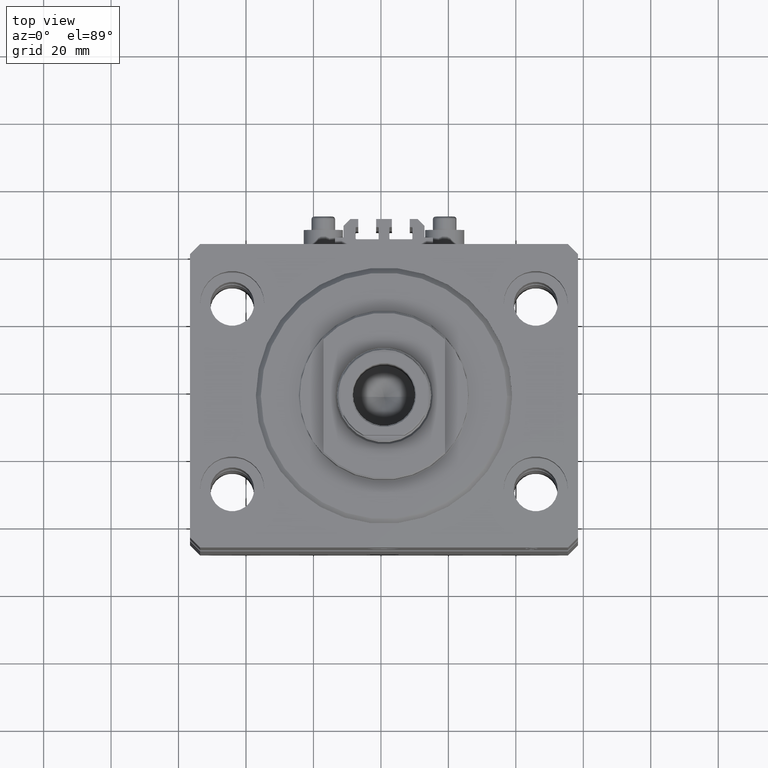
[diagram: clean part render]
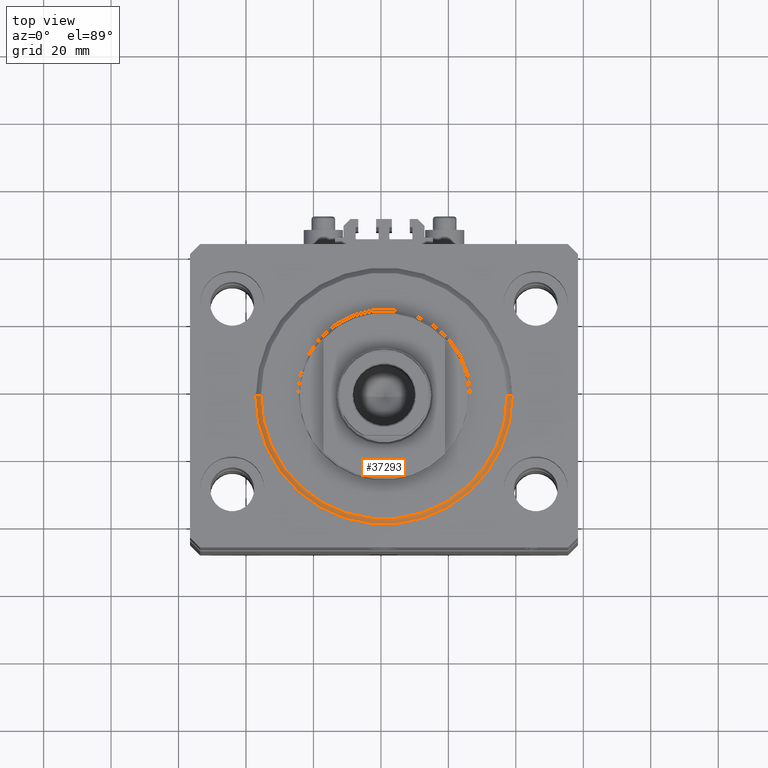
[diagram: same view with one face highlighted and labeled with its STEP entity id]
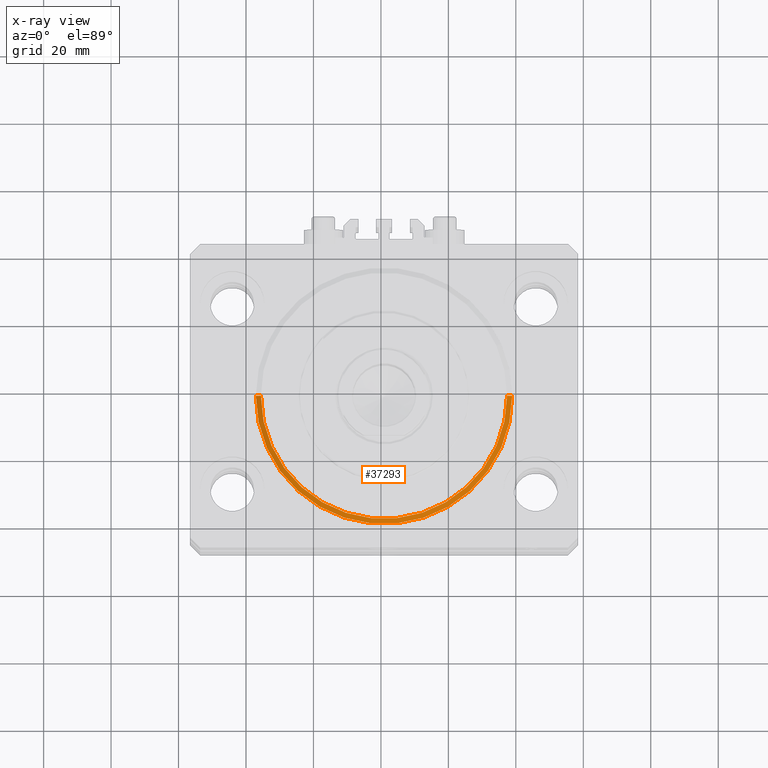
[diagram: x-ray of the same camera — body ghosted, the highlighted face saturated]
A machine part, top view. The second image highlights one B-rep face of the part: STEP entity #37293.
The next image is the same camera in x-ray: the body ghosted, the highlighted face saturated — about 0% of this face is hidden behind the body in this view.
In plain terms, the highlighted conical surface has half-angle 45 deg.
Its self-contained STEP definition (entity closure, byte-faithful):
#34 = EDGE_CURVE ( 'NONE', #3054, #5556, #868, .T. ) ;
#303 = FACE_OUTER_BOUND ( 'NONE', #16347, .T. ) ;
#868 = CIRCLE ( 'NONE', #7131, 38.00000000000000000 ) ;
#1005 = VECTOR ( 'NONE', #33253, 1000.000000000000114 ) ;
#3054 = VERTEX_POINT ( 'NONE', #3459 ) ;
#3459 = CARTESIAN_POINT ( 'NONE',  ( -38.00000000000000000, 0.000000000000000000, 1.499999999999987566 ) ) ;
#4163 = EDGE_CURVE ( 'NONE', #32952, #3054, #21049, .T. ) ;
#4377 = DIRECTION ( 'NONE',  ( 1.000000000000000000, 0.000000000000000000, 0.000000000000000000 ) ) ;
#4681 = CARTESIAN_POINT ( 'NONE',  ( 0.000000000000000000, 0.000000000000000000, 1.499999999999987566 ) ) ;
#5084 = ORIENTED_EDGE ( 'NONE', *, *, #18722, .T. ) ;
#5556 = VERTEX_POINT ( 'NONE', #41444 ) ;
#6200 = CIRCLE ( 'NONE', #40811, 36.50000000000000000 ) ;
#6421 = LINE ( 'NONE', #29553, #1005 ) ;
#7131 = AXIS2_PLACEMENT_3D ( 'NONE', #43220, #42983, #28419 ) ;
#12028 = CARTESIAN_POINT ( 'NONE',  ( 0.000000000000000000, 0.000000000000000000, 0.000000000000000000 ) ) ;
#14178 = CONICAL_SURFACE ( 'NONE', #46427, 38.00000000000000000, 0.7853981633974529419 ) ;
#15771 = DIRECTION ( 'NONE',  ( 1.000000000000000000, 0.000000000000000000, 0.000000000000000000 ) ) ;
#16026 = DIRECTION ( 'NONE',  ( -0.000000000000000000, -0.000000000000000000, 1.000000000000000000 ) ) ;
#16347 = EDGE_LOOP ( 'NONE', ( #19144, #47889, #5084, #47958 ) ) ;
#18722 = EDGE_CURVE ( 'NONE', #44314, #5556, #6421, .T. ) ;
#19144 = ORIENTED_EDGE ( 'NONE', *, *, #4163, .F. ) ;
#19827 = VECTOR ( 'NONE', #36339, 1000.000000000000114 ) ;
#21049 = LINE ( 'NONE', #24743, #19827 ) ;
#24743 = CARTESIAN_POINT ( 'NONE',  ( -38.00000000000000000, 4.653657836759941152E-15, 1.499999999999987566 ) ) ;
#24783 = CARTESIAN_POINT ( 'NONE',  ( 36.50000000000000000, 0.000000000000000000, 0.000000000000000000 ) ) ;
#28419 = DIRECTION ( 'NONE',  ( 1.000000000000000000, 0.000000000000000000, 0.000000000000000000 ) ) ;
#29553 = CARTESIAN_POINT ( 'NONE',  ( 38.00000000000000000, 0.000000000000000000, 1.499999999999987566 ) ) ;
#32952 = VERTEX_POINT ( 'NONE', #47897 ) ;
#33253 = DIRECTION ( 'NONE',  ( 0.7071067811865507924, 0.000000000000000000, 0.7071067811865441310 ) ) ;
#33564 = EDGE_CURVE ( 'NONE', #44314, #32952, #6200, .T. ) ;
#36339 = DIRECTION ( 'NONE',  ( -0.7071067811865507924, 8.659560562354972301E-17, 0.7071067811865441310 ) ) ;
#37293 = ADVANCED_FACE ( 'NONE', ( #303 ), #14178, .T. ) ;
#38149 = DIRECTION ( 'NONE',  ( -0.000000000000000000, -0.000000000000000000, -1.000000000000000000 ) ) ;
#40811 = AXIS2_PLACEMENT_3D ( 'NONE', #12028, #38149, #4377 ) ;
#41444 = CARTESIAN_POINT ( 'NONE',  ( 38.00000000000000000, 4.653657836759941941E-15, 1.499999999999987566 ) ) ;
#42983 = DIRECTION ( 'NONE',  ( -0.000000000000000000, -0.000000000000000000, 1.000000000000000000 ) ) ;
#43220 = CARTESIAN_POINT ( 'NONE',  ( 0.000000000000000000, 0.000000000000000000, 1.499999999999987566 ) ) ;
#44314 = VERTEX_POINT ( 'NONE', #24783 ) ;
#46427 = AXIS2_PLACEMENT_3D ( 'NONE', #4681, #16026, #15771 ) ;
#47889 = ORIENTED_EDGE ( 'NONE', *, *, #33564, .F. ) ;
#47897 = CARTESIAN_POINT ( 'NONE',  ( -36.50000000000000000, 4.561809326823889791E-15, 0.000000000000000000 ) ) ;
#47958 = ORIENTED_EDGE ( 'NONE', *, *, #34, .F. ) ;